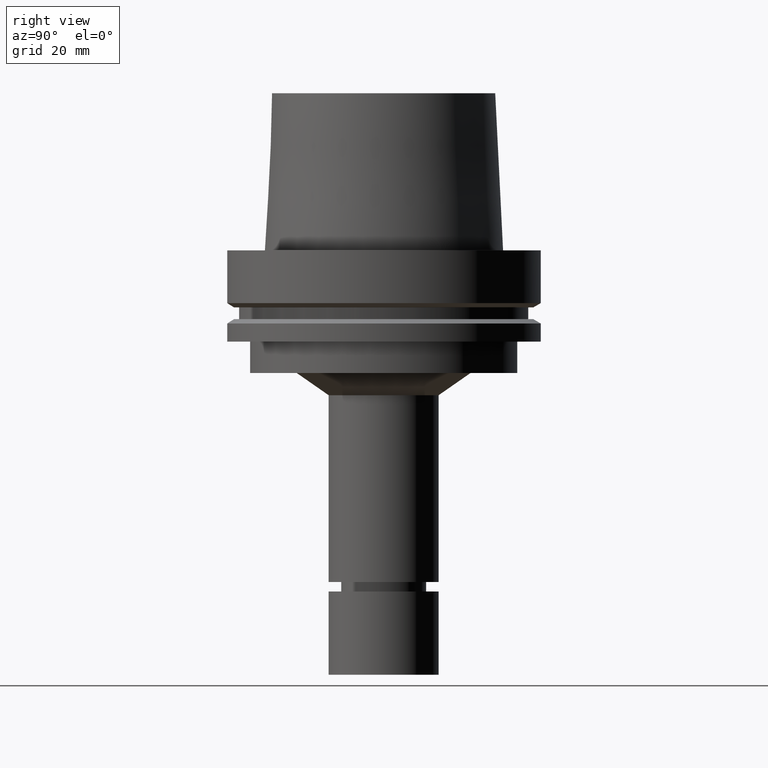
[diagram: clean part render]
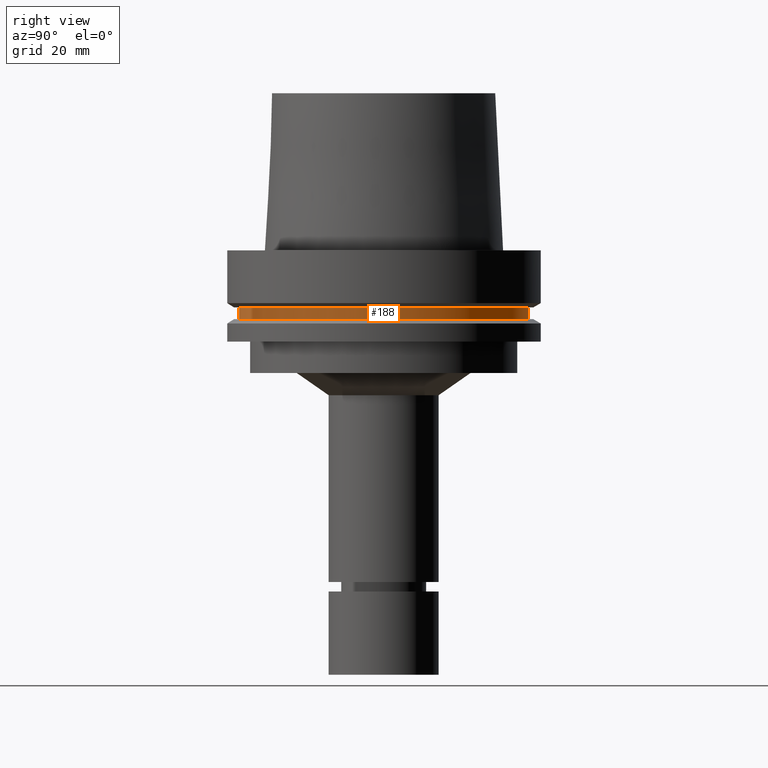
[diagram: same view with one face highlighted and labeled with its STEP entity id]
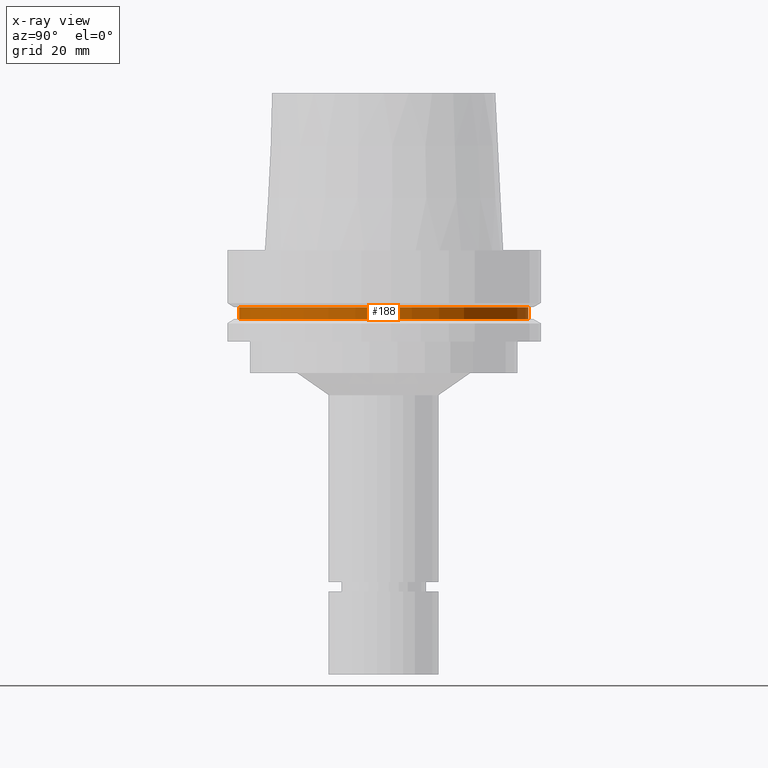
[diagram: x-ray of the same camera — body ghosted, the highlighted face saturated]
A machine part, right view. The second image highlights one B-rep face of the part: STEP entity #188.
The next image is the same camera in x-ray: the body ghosted, the highlighted face saturated — about 0% of this face is hidden behind the body in this view.
In plain terms, the highlighted cylindrical surface (bore or boss wall) has radius 46 mm, axis along (0, 0, -1).
Its self-contained STEP definition (entity closure, byte-faithful):
#141=EDGE_CURVE('Unnamed[1]',#316,#316,#317,.T.);
#152=EDGE_CURVE('Unnamed[1]',#333,#333,#334,.T.);
#188=ADVANCED_FACE('Unnamed[1]',(#386,#387),#388,.T.);
#316=VERTEX_POINT('',#540);
#317=CIRCLE('',#541,46.0);
#333=VERTEX_POINT('',#561);
#334=CIRCLE('',#562,46.0);
#386=FACE_BOUND('',#626,.T.);
#387=FACE_BOUND('',#627,.T.);
#388=CYLINDRICAL_SURFACE('',#628,46.0);
#540=CARTESIAN_POINT('',(1.10983616172729E-015,46.0,-18.125));
#541=AXIS2_PLACEMENT_3D('',#761,#762,#763);
#561=CARTESIAN_POINT('',(1.33945743656742E-015,46.0,-21.875));
#562=AXIS2_PLACEMENT_3D('',#781,#782,#783);
#626=EDGE_LOOP('',(#835));
#627=EDGE_LOOP('',(#836));
#628=AXIS2_PLACEMENT_3D('',#837,#838,#839);
#761=CARTESIAN_POINT('',(1.10983616172729E-015,2.21967232345458E-015,-18.125));
#762=DIRECTION('',(6.12323399573677E-017,1.22464679914716E-016,-1.0));
#763=DIRECTION('',(-1.23259516440783E-032,1.0,1.22464679914716E-016));
#781=CARTESIAN_POINT('',(1.33945743656742E-015,2.67891487313484E-015,-21.875));
#782=DIRECTION('',(6.12323399573677E-017,1.22464679914716E-016,-1.0));
#783=DIRECTION('',(-1.23259516440783E-032,1.0,1.22464679914716E-016));
#835=ORIENTED_EDGE('',*,*,#152,.F.);
#836=ORIENTED_EDGE('',*,*,#141,.T.);
#837=CARTESIAN_POINT('',(1.22464679914735E-015,2.44929359829471E-015,-20.0));
#838=DIRECTION('',(6.12323399573677E-017,1.22464679914716E-016,-1.0));
#839=DIRECTION('',(-1.23259516440783E-032,1.0,1.22464679914716E-016));